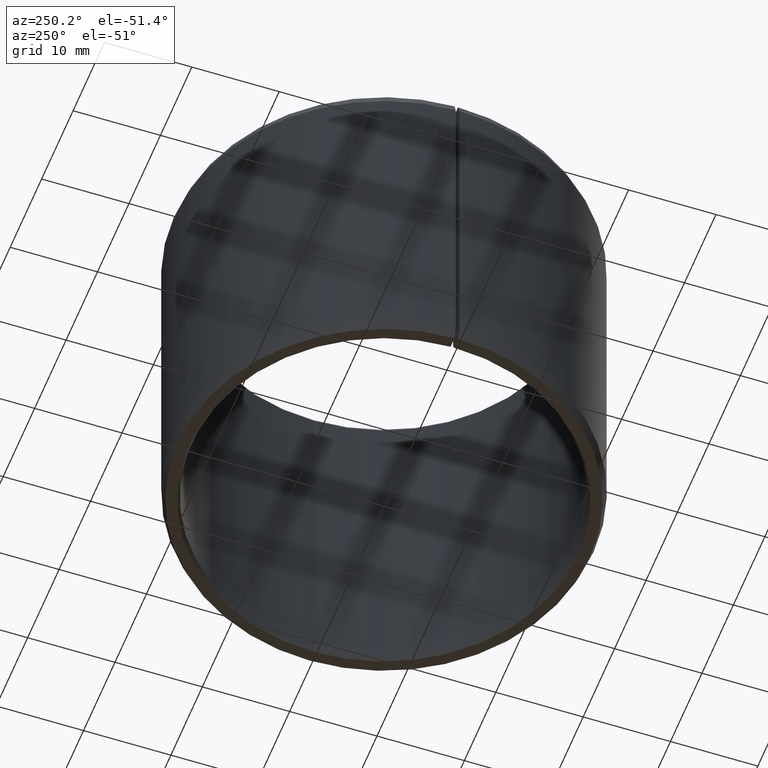
[diagram: clean part render]
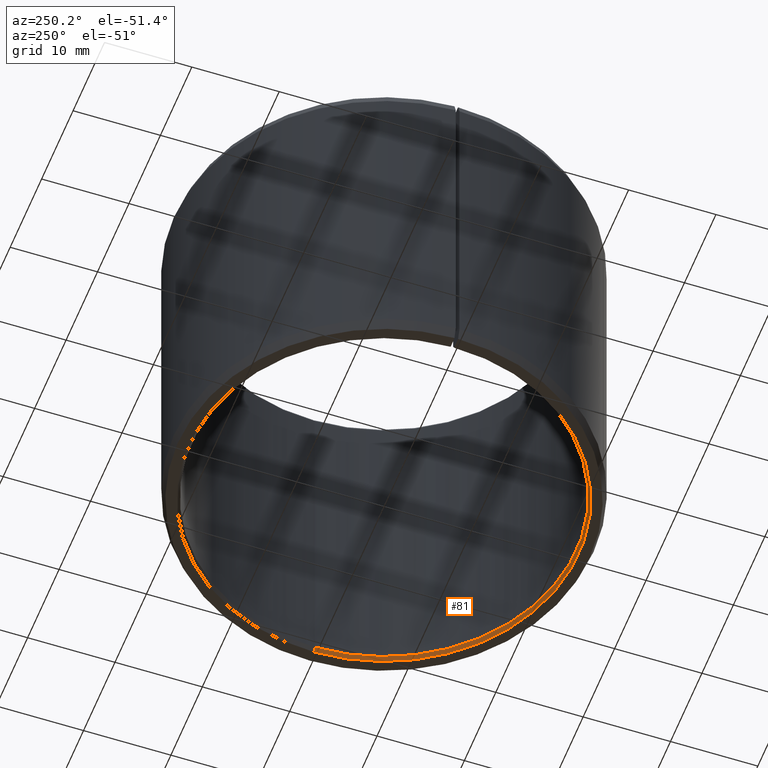
[diagram: same view with one face highlighted and labeled with its STEP entity id]
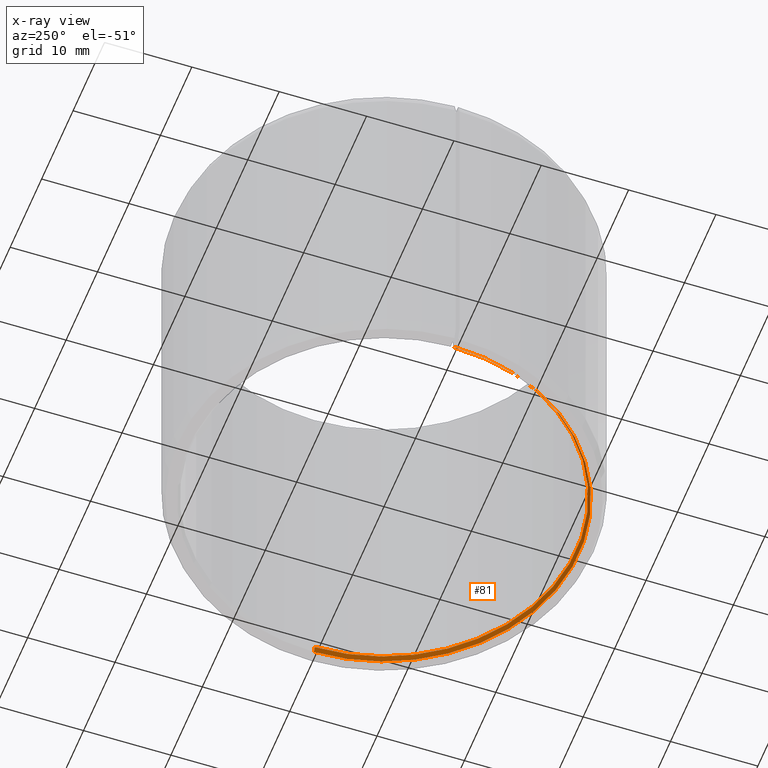
[diagram: x-ray of the same camera — body ghosted, the highlighted face saturated]
A machine part, auxiliary view. The second image highlights one B-rep face of the part: STEP entity #81.
The next image is the same camera in x-ray: the body ghosted, the highlighted face saturated — about 0% of this face is hidden behind the body in this view.
In plain terms, the highlighted conical surface has half-angle 30 deg.
Its self-contained STEP definition (entity closure, byte-faithful):
#81=ADVANCED_FACE('',(#104),#105,.F.);
#104=FACE_OUTER_BOUND('',#136,.T.);
#105=CONICAL_SURFACE('',#137,22.1443375672974,0.52359877559829);
#136=EDGE_LOOP('',(#198,#199,#200,#201));
#137=AXIS2_PLACEMENT_3D('',#202,#203,#204);
#198=ORIENTED_EDGE('',*,*,#297,.T.);
#199=ORIENTED_EDGE('',*,*,#300,.F.);
#200=ORIENTED_EDGE('',*,*,#301,.F.);
#201=ORIENTED_EDGE('',*,*,#302,.T.);
#202=CARTESIAN_POINT('',(4.90480744304231E-016,-8.96118336731447E-016,0.250000000000001));
#203=DIRECTION('',(-5.48707263966375E-016,6.09939603923743E-016,-1.0));
#204=DIRECTION('',(-1.0,1.89882151931499E-015,5.48707263966376E-016));
#297=EDGE_CURVE('',#319,#349,#350,.T.);
#300=EDGE_CURVE('',#354,#349,#355,.T.);
#301=EDGE_CURVE('',#356,#354,#357,.T.);
#302=EDGE_CURVE('',#356,#319,#358,.T.);
#319=VERTEX_POINT('',#381);
#349=VERTEX_POINT('',#421);
#350=LINE('',#422,#423);
#354=VERTEX_POINT('',#428);
#355=CIRCLE('',#429,22.2886751345948);
#356=VERTEX_POINT('',#430);
#357=LINE('',#431,#432);
#358=CIRCLE('',#433,22.0);
#381=CARTESIAN_POINT('',(22.0,-4.55168996207662E-014,0.499999999999992));
#421=CARTESIAN_POINT('',(22.2886751345948,-4.57954248844216E-014,-1.08421791697575E-014));
#422=CARTESIAN_POINT('',(22.1443375672974,-4.56561622525939E-014,0.249999999999988));
#423=VECTOR('',#495,1.0);
#428=CARTESIAN_POINT('',(-22.2886751345948,4.14025568459334E-014,1.4810881965703E-014));
#429=AXIS2_PLACEMENT_3D('',#500,#501,#502);
#430=CARTESIAN_POINT('',(-22.0,4.07259344226947E-014,0.500000000000014));
#431=CARTESIAN_POINT('',(-22.0,4.07259344226947E-014,0.500000000000014));
#432=VECTOR('',#503,10.0);
#433=AXIS2_PLACEMENT_3D('',#504,#505,#506);
#495=DIRECTION('',(0.499999999999992,-4.82419907842663E-016,-0.866025403784443));
#500=CARTESIAN_POINT('',(3.53303928312638E-016,-7.58941520739854E-016,1.40055521273414E-015));
#501=DIRECTION('',(5.48707263966375E-016,-6.09939603923743E-016,1.0));
#502=DIRECTION('',(-1.0,1.89882151931499E-015,5.48707263966376E-016));
#503=DIRECTION('',(-0.499999999999993,1.42460518949342E-015,-0.866025403784443));
#504=CARTESIAN_POINT('',(6.27657560295826E-016,-1.03329515272304E-015,0.500000000000004));
#505=DIRECTION('',(5.48707263966375E-016,-6.09939603923743E-016,1.0));
#506=DIRECTION('',(-1.0,1.89882151931499E-015,5.48707263966376E-016));